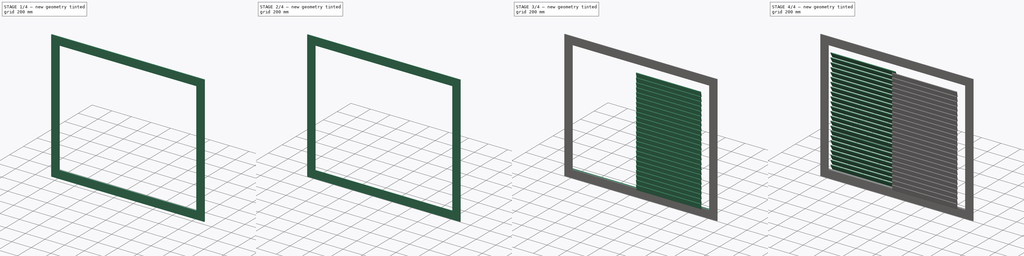
[diagram: build sequence overview — one tinted view per stage of 4, left to right]
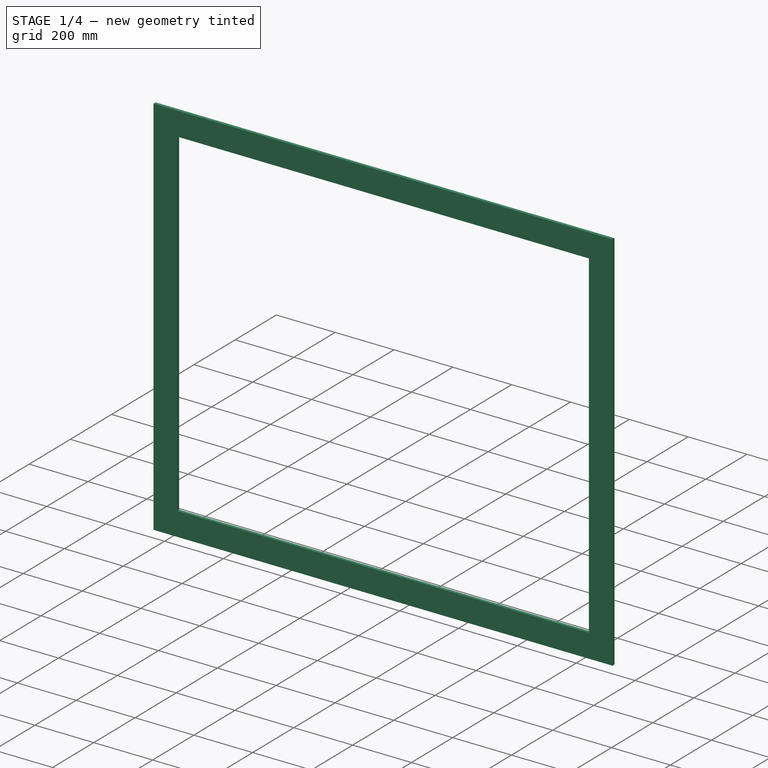
[diagram: stage 1 of 4 — iso view after this stage's code; geometry added in this stage tinted green]
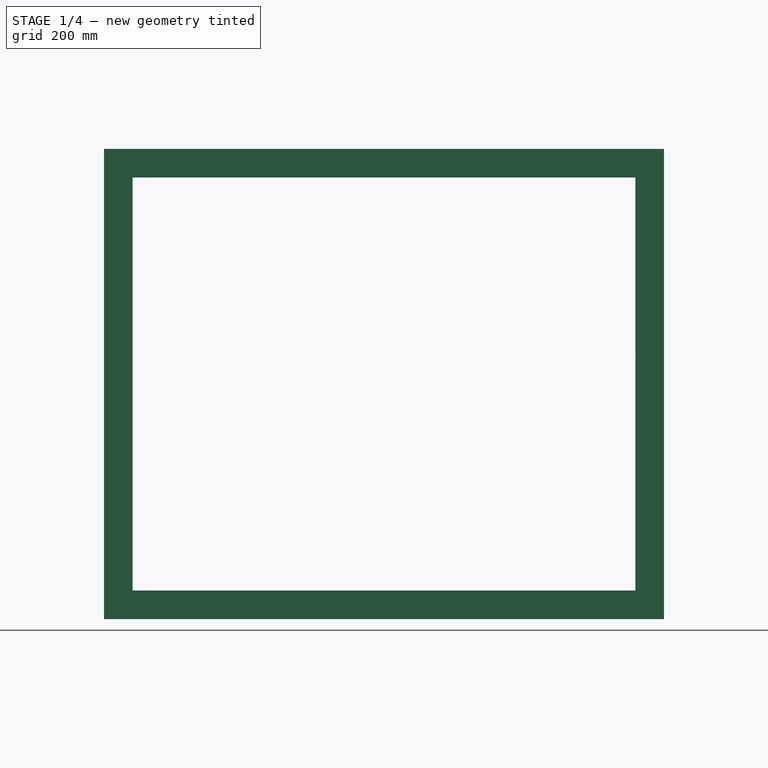
[diagram: stage 1 of 4 — front view after this stage's code; geometry added in this stage tinted green]
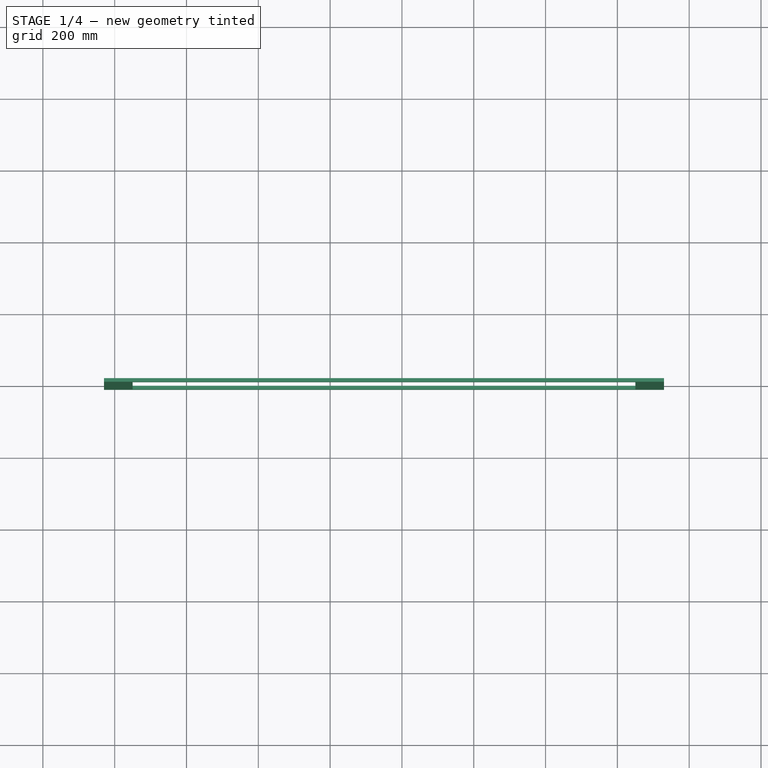
[diagram: stage 1 of 4 — top view after this stage's code; geometry added in this stage tinted green]
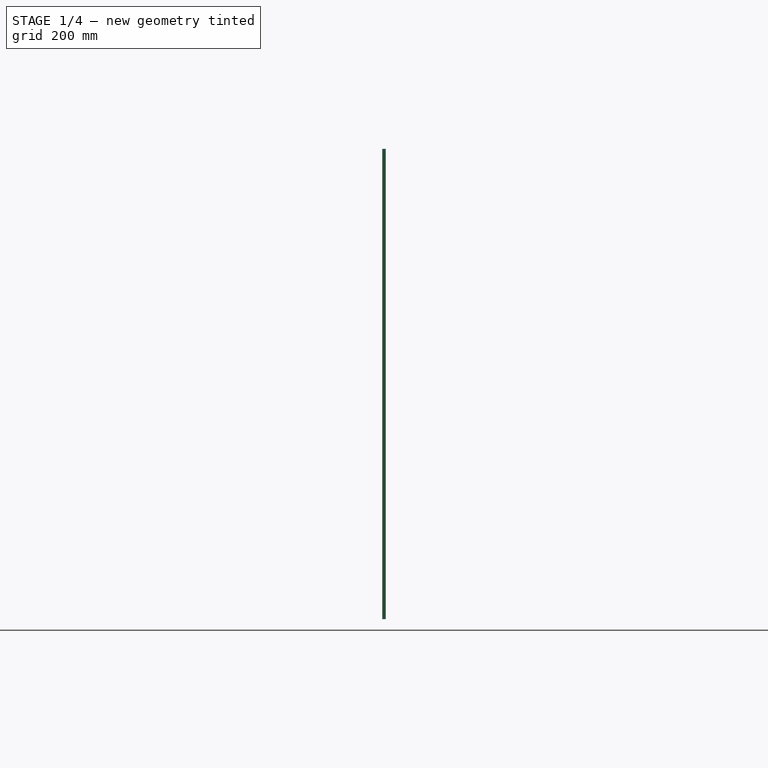
[diagram: stage 1 of 4 — right view after this stage's code; geometry added in this stage tinted green]
FCSTD DOCUMENT  (FreeCAD 0.16R6703 (Git))
Label: Sliding_windows
License: CreativeCommons Attribution
LicenseURL: http://creativecommons.org/licenses/by/4.0/
objects: Sketcher::SketchObject×5, Part::Extrusion×4, Part::FeaturePython×3, PartDesign::Fillet×1, Part::Mirroring×1, App::DocumentObjectGroup×1
note: 14 computed .brp shape members not serialized (recipe doc carries the construction recipe); baked Part::Feature solids carry a one-line shape summary decoded from their .brp

FEATURE [Sketcher::SketchObject] Sketch004
  Placement = pos=(0,0,0) rot=(1,0,0;1.5708rad)
  expr: Constraints.Door_window_width = (Sketch004.Constraints.Width - 2 * Constraints.Door_window_frame) / 2 + Constraints.Frames - Constraints.Vertical_joint_01
  sketch-geometry (43):
    g0: LineSegment StartX=0 StartY=2100 StartZ=0 EndX=1500 EndY=2100 EndZ=0
    g1: LineSegment StartX=1500 StartY=2100 StartZ=0 EndX=1500 EndY=860 EndZ=0
    g2: LineSegment StartX=1500 StartY=860 StartZ=0 EndX=0 EndY=860 EndZ=0
    g3: LineSegment StartX=0 StartY=860 StartZ=0 EndX=0 EndY=2100 EndZ=0
    g4: LineSegment StartX=50 StartY=2050 StartZ=0 EndX=1450 EndY=2050 EndZ=0
    g5: LineSegment StartX=1450 StartY=2050 StartZ=0 EndX=1450 EndY=900 EndZ=0
    g6: LineSegment StartX=1450 StartY=900 StartZ=0 EndX=50 EndY=900 EndZ=0
    g7: LineSegment StartX=50 StartY=900 StartZ=0 EndX=50 EndY=2050 EndZ=0
    g8: LineSegment [constr] StartX=50 StartY=2050 StartZ=0 EndX=0 EndY=2050 EndZ=0
    g9: LineSegment [constr] StartX=50 StartY=2050 StartZ=0 EndX=50 EndY=2100 EndZ=0
    g10: LineSegment [constr] StartX=1450 StartY=2050 StartZ=0 EndX=1500 EndY=2050 EndZ=0
    g11: LineSegment StartX=50 StartY=2049 StartZ=0 EndX=789 EndY=2049 EndZ=0
    g12: LineSegment StartX=789 StartY=2049 StartZ=0 EndX=789 EndY=901 EndZ=0
    g13: LineSegment StartX=789 StartY=901 StartZ=0 EndX=50 EndY=901 EndZ=0
    g14: LineSegment StartX=50 StartY=901 StartZ=0 EndX=50 EndY=2049 EndZ=0
    g15: LineSegment StartX=710 StartY=2049 StartZ=0 EndX=1449 EndY=2049 EndZ=0
    g16: LineSegment StartX=1449 StartY=2049 StartZ=0 EndX=1449 EndY=901 EndZ=0
    g17: LineSegment StartX=1449 StartY=901 StartZ=0 EndX=710 EndY=901 EndZ=0
    g18: LineSegment StartX=710 StartY=901 StartZ=0 EndX=710 EndY=2049 EndZ=0
    g19: LineSegment StartX=90 StartY=2009 StartZ=0 EndX=749 EndY=2009 EndZ=0
    g20: LineSegment StartX=749 StartY=2009 StartZ=0 EndX=749 EndY=941 EndZ=0
    g21: LineSegment StartX=749 StartY=941 StartZ=0 EndX=90 EndY=941 EndZ=0
    g22: LineSegment StartX=90 StartY=941 StartZ=0 EndX=90 EndY=2009 EndZ=0
    g23: LineSegment StartX=750 StartY=2009 StartZ=0 EndX=1409 EndY=2009 EndZ=0
    g24: LineSegment StartX=1409 StartY=2009 StartZ=0 EndX=1409 EndY=941 EndZ=0
    g25: LineSegment StartX=1409 StartY=941 StartZ=0 EndX=750 EndY=941 EndZ=0
    g26: LineSegment StartX=750 StartY=941 StartZ=0 EndX=750 EndY=2009 EndZ=0
    g27: LineSegment [constr] StartX=90 StartY=2009 StartZ=0 EndX=50 EndY=2009 EndZ=0
    g28: LineSegment [constr] StartX=749 StartY=2009 StartZ=0 EndX=749 EndY=2049 EndZ=0
    g29: LineSegment [constr] StartX=749 StartY=2009 StartZ=0 EndX=789 EndY=2009 EndZ=0
    g30: LineSegment [constr] StartX=749 StartY=941 StartZ=0 EndX=749 EndY=901 EndZ=0
    g31: LineSegment [constr] StartX=750 StartY=941 StartZ=0 EndX=710 EndY=941 EndZ=0
    g32: LineSegment [constr] StartX=1409 StartY=2009 StartZ=0 EndX=1449 EndY=2009 EndZ=0
    g33: LineSegment StartX=60 StartY=2049 StartZ=0 EndX=799 EndY=2049 EndZ=0
    g34: LineSegment StartX=799 StartY=2049 StartZ=0 EndX=799 EndY=901 EndZ=0
    g35: LineSegment StartX=799 StartY=901 StartZ=0 EndX=60 EndY=901 EndZ=0
    g36: LineSegment StartX=60 StartY=901 StartZ=0 EndX=60 EndY=2049 EndZ=0
    g37: LineSegment StartX=100 StartY=2009 StartZ=0 EndX=759 EndY=2009 EndZ=0
    g38: LineSegment StartX=759 StartY=2009 StartZ=0 EndX=759 EndY=941 EndZ=0
    g39: LineSegment StartX=759 StartY=941 StartZ=0 EndX=100 EndY=941 EndZ=0
    g40: LineSegment StartX=100 StartY=941 StartZ=0 EndX=100 EndY=2009 EndZ=0
    g41: LineSegment [constr] StartX=100 StartY=1399.42 StartZ=0 EndX=60 EndY=1399.42 EndZ=0
    g42: LineSegment [constr] StartX=759 StartY=1414.11 StartZ=0 EndX=799 EndY=1414.11 EndZ=0
  constraints (138):
    c: Coincident(g0,g1)
    c: Coincident(g1,g2)
    c: Coincident(g2,g3)
    c: Coincident(g3,g0)
    c: Horizontal(g0)
    c: Horizontal(g2)
    c: Vertical(g1)
    c: Vertical(g3)
    c: DistanceX(g0,g0) = 1500  'Width'
    c: Coincident(g4,g5)  'Constraint10'
    c: Coincident(g5,g6)
    c: Coincident(g6,g7)
    c: Coincident(g7,g4)
    c: Horizontal(g4)
    c: Horizontal(g6)
    c: Vertical(g5)
    c: Vertical(g7)
    c: PointOnObject(g8,g7)
    c: PointOnObject(g8,g3)
    c: PointOnObject(g9,g4)
    c: PointOnObject(g9,g0)
    c: PointOnObject(g10,g5)
    c: PointOnObject(g10,g1)
    c: DistanceX(g-1,g2) = 0  'Origin_lenght'
    c: DistanceY(g-1,g2) = 860  'Origin_height'
    c: Angle(g8) = 3.14159  'Constraint27'
    c: Angle(g9) = 1.5708
    c: Angle(g10) = 0
    c: Coincident(g4,g8)
    c: Coincident(g9,g4)
    c: Coincident(g10,g4)
    c: DistanceX(g2,g6) = 50  'Door_window_frame'
    c: Equal(g8,g9)
    c: Equal(g9,g10)
    c: DistanceY(g1,g5) = 40  'Inferior_frame'
    c: Coincident(g11,g12)
    c: Coincident(g12,g13)
    c: Coincident(g13,g14)
    c: Coincident(g14,g11)
    c: Horizontal(g11)
    c: Horizontal(g13)
    c: Vertical(g12)
    c: Vertical(g14)
    c: Coincident(g15,g16)
    c: Coincident(g16,g17)
    c: Coincident(g17,g18)
    c: Coincident(g18,g15)
    c: Horizontal(g15)
    c: Horizontal(g17)
    c: Vertical(g16)
    c: Vertical(g18)
    c: Coincident(g19,g20)
    c: Coincident(g20,g21)
    c: Coincident(g21,g22)
    c: Coincident(g22,g19)
    c: Horizontal(g19)
    c: Horizontal(g21)
    c: Vertical(g20)
    c: Vertical(g22)
    c: Coincident(g23,g24)
    c: Coincident(g24,g25)
    c: Coincident(g25,g26)
    c: Coincident(g26,g23)
    c: Horizontal(g23)
    c: Horizontal(g25)
    c: Vertical(g24)
    c: Vertical(g26)
    c: Equal(g11,g15)
    c: PointOnObject(g27,g22)
    c: PointOnObject(g27,g14)
    c: PointOnObject(g28,g19)
    c: PointOnObject(g28,g11)
    c: PointOnObject(g29,g20)
    c: PointOnObject(g29,g12)
    c: PointOnObject(g30,g13)
    c: Angle(g28) = 1.5708
    c: Angle(g27) = 3.14159
    c: Angle(g29) = 0
    c: PointOnObject(g30,g21)
    c: Angle(g30) = -1.5708
    c: Equal(g28,g27)
    c: Equal(g27,g29)
    c: Equal(g29,g30)
    c: DistanceX(g11,g19) = 40  'Frames'
    c: DistanceY(g11,g15) = 0
    c: DistanceY(g19,g23) = 0
    c: DistanceY(g20,g25) = 0
    c: DistanceY(g17,g12) = 0
    c: PointOnObject(g31,g26)
    c: PointOnObject(g31,g18)
    c: Angle(g31) = -3.14159
    c: PointOnObject(g32,g16)
    c: PointOnObject(g32,g24)
    c: Angle(g32) = 0
    c: Equal(g29,g31)
    c: Equal(g31,g32)
    c: Coincident(g19,g28)
    c: Coincident(g29,g19)
    c: Coincident(g30,g20)
    c: Coincident(g19,g27)
    c: Coincident(g31,g25)
    c: Coincident(g32,g23)
    c: DistanceY(g15,g4) = 1  'Horizontal_joint_01'
    c: DistanceY(g6,g13) = 1  'Horizontal_joint_02'
    c: DistanceX(g15,g4) = 1  'Vertical_joint_01'
    c: DistanceX(g4,g11) = 0  'Door_window_opening'
    c: DistanceX(g11,g11) = 739  'Door_window_width'
    c: Coincident(g33,g34)
    c: Coincident(g34,g35)
    c: Coincident(g35,g36)
    c: Coincident(g36,g33)
    c: Horizontal(g33)
    c: Horizontal(g35)
    c: Vertical(g34)
    c: Vertical(g36)
    c: Coincident(g37,g38)
    c: Coincident(g38,g39)
    c: Coincident(g39,g40)
    c: Coincident(g40,g37)
    c: Horizontal(g37)
    c: Horizontal(g39)
    c: Vertical(g38)
    c: Vertical(g40)
    c: PointOnObject(g41,g40)
    c: PointOnObject(g41,g36)
    c: PointOnObject(g42,g34)
    c: Angle(g41) = 3.14159
    c: Angle(g42) = 0
    c: Equal(g27,g42)
    c: Equal(g42,g41)
    c: PointOnObject(g42,g38)
    c: DistanceY(g33,g15) = 0
    c: DistanceY(g37,g19) = 0
    c: DistanceY(g38,g21) = 0
    c: DistanceY(g34,g13) = 0
    c: Equal(g11,g33)
    c: DistanceX(g4,g33) = 10  'Shutter_opening'
    c: DistanceY(g5,g0) = 1200  'Height'
FEATURE [Part::FeaturePython] Window001  label="Window 001"  # WARN: FeaturePython — macro-defined, semantics opaque (R4)
  Base = -> Sketch004
  Height = 0
  HoleDepth = 0
  MoveWithHost = true
  Normal = (0,1,0)
  Preset = 0
  Role = 0
  Width = 0
  WindowParts = DOOR_WINDOW_FRAME | Frame | Wire0,Wire1 | 150.0 | 0.0 | DOOR_01 | Frame | Wire2,Wire4 | 40.0 | 20.0 | DOOR_02 | Frame | Wire3,Wire5 | 40.0 | 65.0 | DOOR_03 | Frame | Wire6,Wire7 | 40.0 | 110.0 | GLASS | Glass panel | Wire4 | 10.0 | 37.5
FEATURE [Sketcher::SketchObject] Sketch007
  ExternalGeometry = -> [Window001]
  Placement = pos=(0,0,0) rot=(1,0,0;1.5708rad)
  Support = -> Window001 [Face4]
  sketch-geometry (12):
    g0: LineSegment StartX=-30 StartY=2130 StartZ=0 EndX=1530 EndY=2130 EndZ=0
    g1: LineSegment StartX=1530 StartY=2130 StartZ=0 EndX=1530 EndY=820 EndZ=0
    g2: LineSegment StartX=1530 StartY=820 StartZ=0 EndX=-30 EndY=820 EndZ=0
    g3: LineSegment StartX=-30 StartY=820 StartZ=0 EndX=-30 EndY=2130 EndZ=0
    g4: LineSegment StartX=50 StartY=2050 StartZ=0 EndX=1450 EndY=2050 EndZ=0
    g5: LineSegment StartX=1450 StartY=2050 StartZ=0 EndX=1450 EndY=900 EndZ=0
    g6: LineSegment StartX=1450 StartY=900 StartZ=0 EndX=50 EndY=900 EndZ=0
    g7: LineSegment StartX=50 StartY=900 StartZ=0 EndX=50 EndY=2050 EndZ=0
    g8: LineSegment [constr] StartX=-30 StartY=1983.8 StartZ=0 EndX=50 EndY=1983.8 EndZ=0
    g9: LineSegment [constr] StartX=760.68 StartY=2050 StartZ=0 EndX=760.68 EndY=2130 EndZ=0
    g10: LineSegment [constr] StartX=1450 StartY=1482.81 StartZ=0 EndX=1530 EndY=1482.81 EndZ=0
    g11: LineSegment [constr] StartX=2219.25 StartY=900 StartZ=0 EndX=2219.25 EndY=820 EndZ=0
  constraints (36):
    c: Coincident(g0,g1)
    c: Coincident(g1,g2)
    c: Coincident(g2,g3)
    c: Coincident(g3,g0)
    c: Horizontal(g0)
    c: Horizontal(g2)
    c: Vertical(g1)
    c: Vertical(g3)
    c: Coincident(g4,g5)
    c: Coincident(g5,g6)
    c: Coincident(g6,g7)
    c: Coincident(g7,g4)
    c: Horizontal(g4)
    c: Horizontal(g6)
    c: Vertical(g5)
    c: Vertical(g7)
    c: PointOnObject(g8,g3)
    c: PointOnObject(g8,g7)
    c: PointOnObject(g9,g4)
    c: PointOnObject(g10,g5)
    c: PointOnObject(g10,g1)
    c: PointOnObject(g11,g2)
    c: PointOnObject(g9,g0)
    c: Angle(g9) = 1.5708
    c: Angle(g8) = 0
    c: Angle(g10) = 0
    c: PointOnObject(g11,g6)
    c: Angle(g11) = -1.5708
    c: Equal(g11,g10)
    c: Equal(g10,g9)
    c: Equal(g9,g8)
    c: DistanceX(g0,g4) = 80  'Trim'
    c: DistanceX(g4,g-6) = 0
    c: DistanceY(g-6,g4) = 0
    c: DistanceY(g5,g-8) = 0
    c: DistanceX(g-8,g5) = 0
FEATURE [Part::Extrusion] Extrude_Sketch006  label="Trim001"
  Base = -> Sketch007
  Dir = (0,-10,0)
  Solid = true
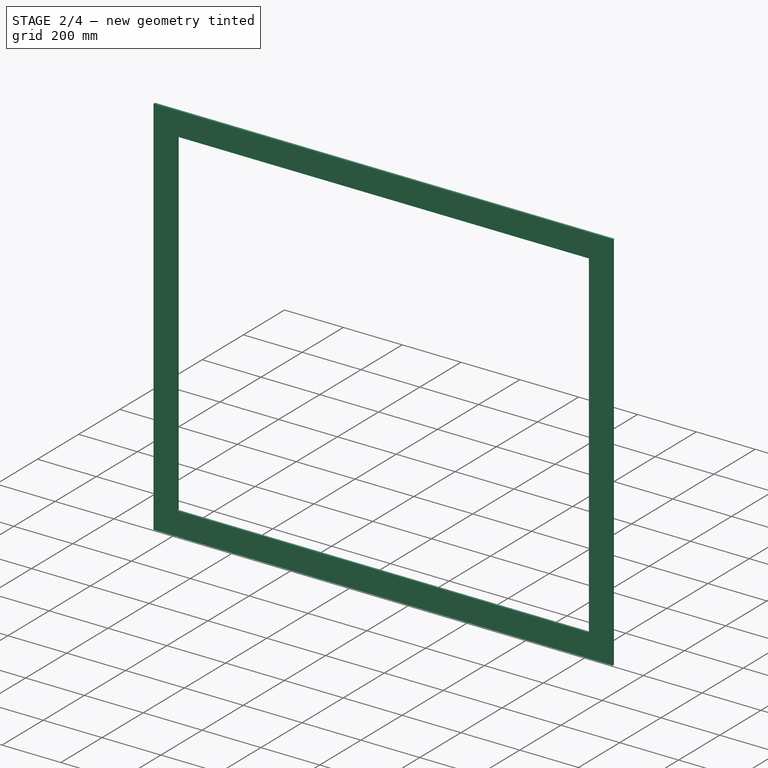
[diagram: stage 2 of 4 — iso view after this stage's code; geometry added in this stage tinted green]
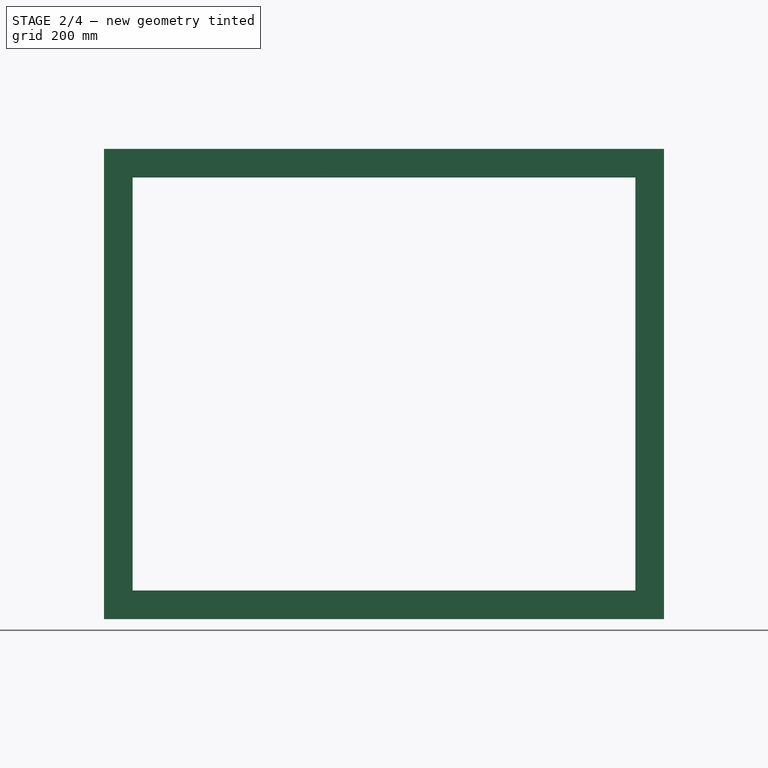
[diagram: stage 2 of 4 — front view after this stage's code; geometry added in this stage tinted green]
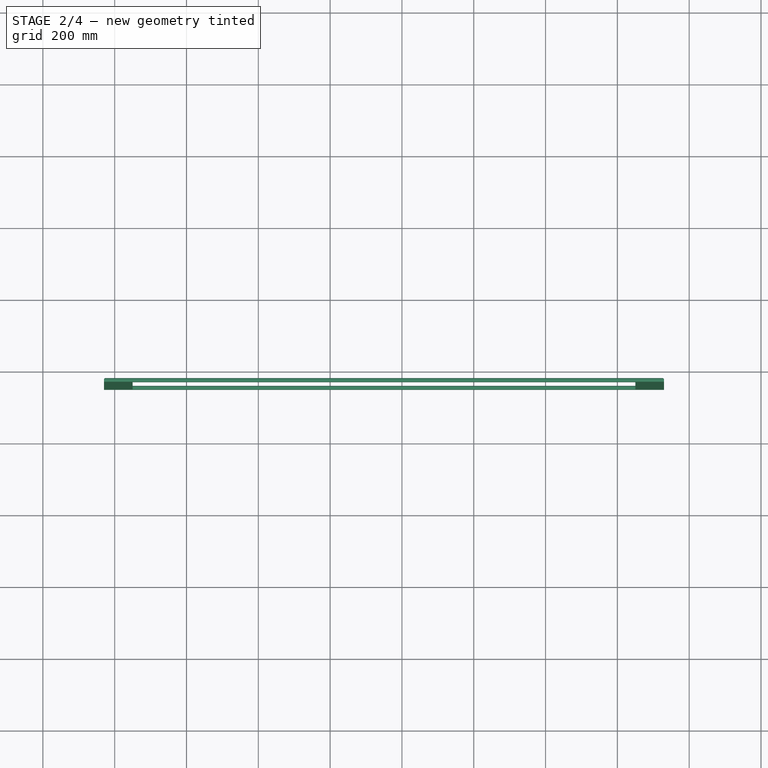
[diagram: stage 2 of 4 — top view after this stage's code; geometry added in this stage tinted green]
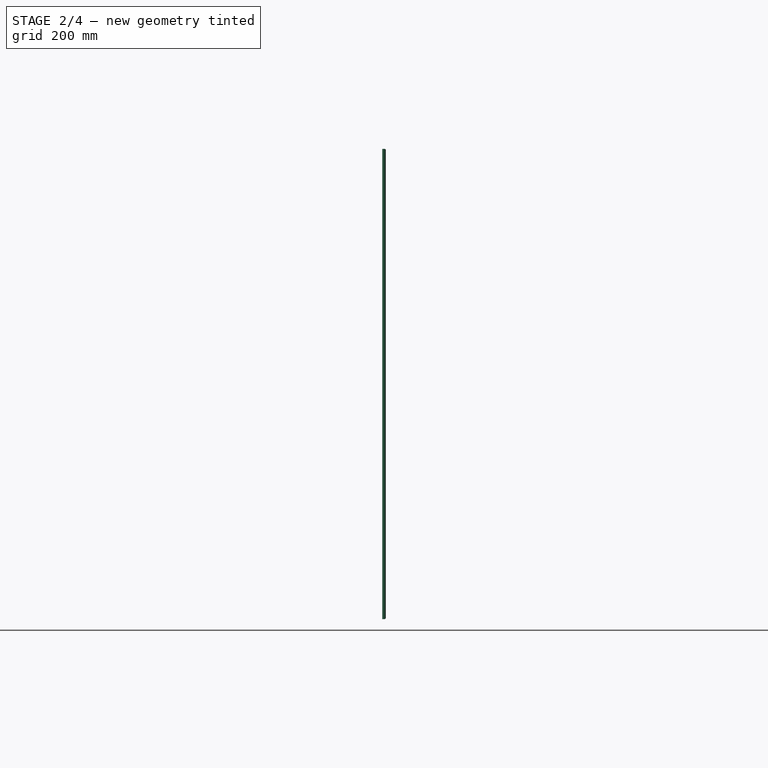
[diagram: stage 2 of 4 — right view after this stage's code; geometry added in this stage tinted green]
FEATURE [PartDesign::Fillet] Fillet001  label="Internal_trim "
  Base = -> Extrude_Sketch006 [Edge4,Edge16,Edge19,Edge7,Edge24,Edge12,Edge22,Edge10]
  Radius = 4
FEATURE [Part::Mirroring] Part__Mirroring001  label="External_trim  (Mirror #2)"
  Base = (0,0,0)
  Normal = (0,1,0)
  Placement = pos=(0,150,0) rot=(0,0,1;0rad)
  Source = -> Fillet001
FEATURE [App::DocumentObjectGroup] Group001  label="Window "
  Group = -> [Window001,Array002,Array003,Extrude_Sketch006,Sketch008,Extrude_Sketch008,Fillet001,Part__Mirroring001]
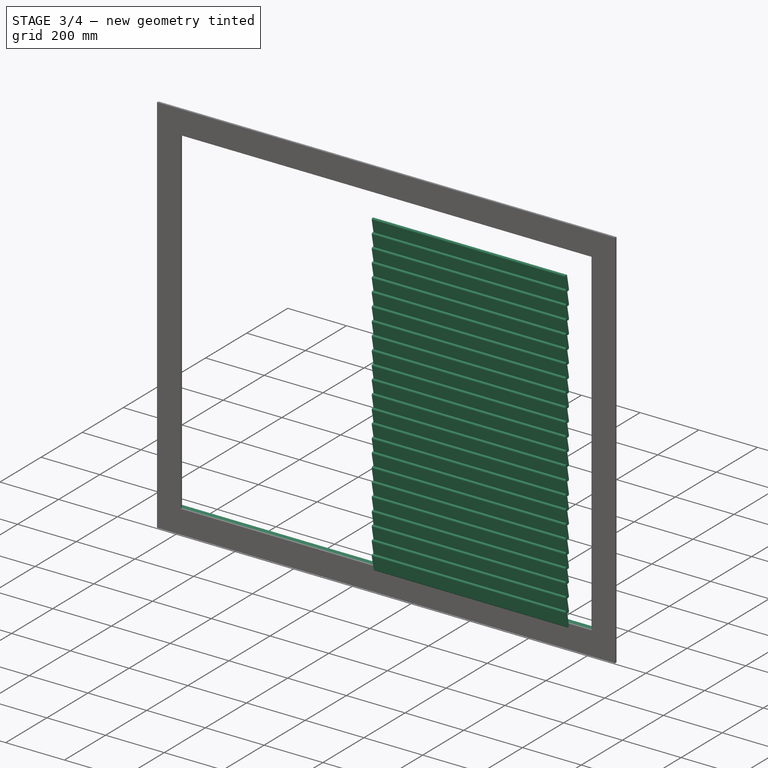
[diagram: stage 3 of 4 — iso view after this stage's code; geometry added in this stage tinted green]
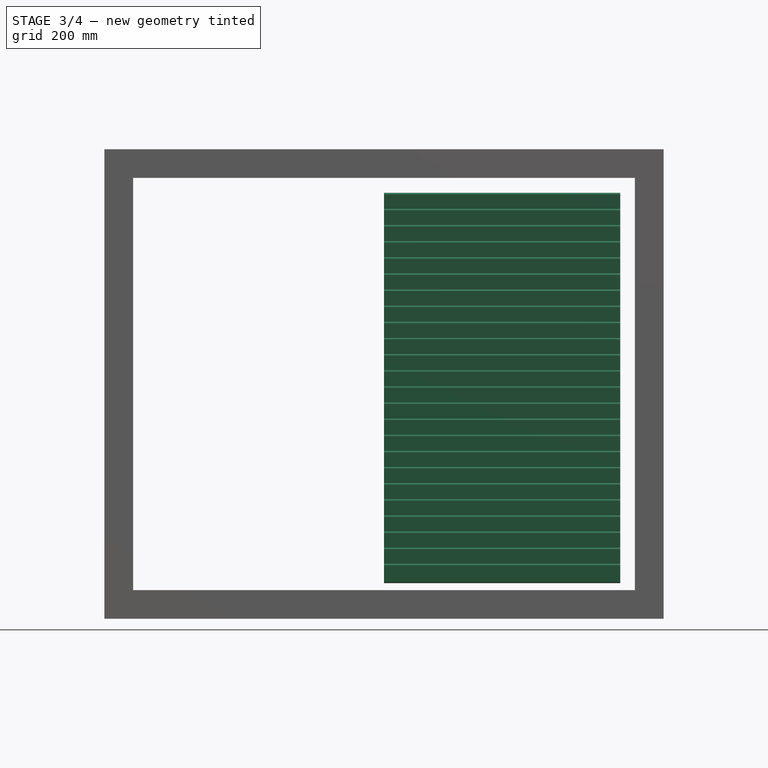
[diagram: stage 3 of 4 — front view after this stage's code; geometry added in this stage tinted green]
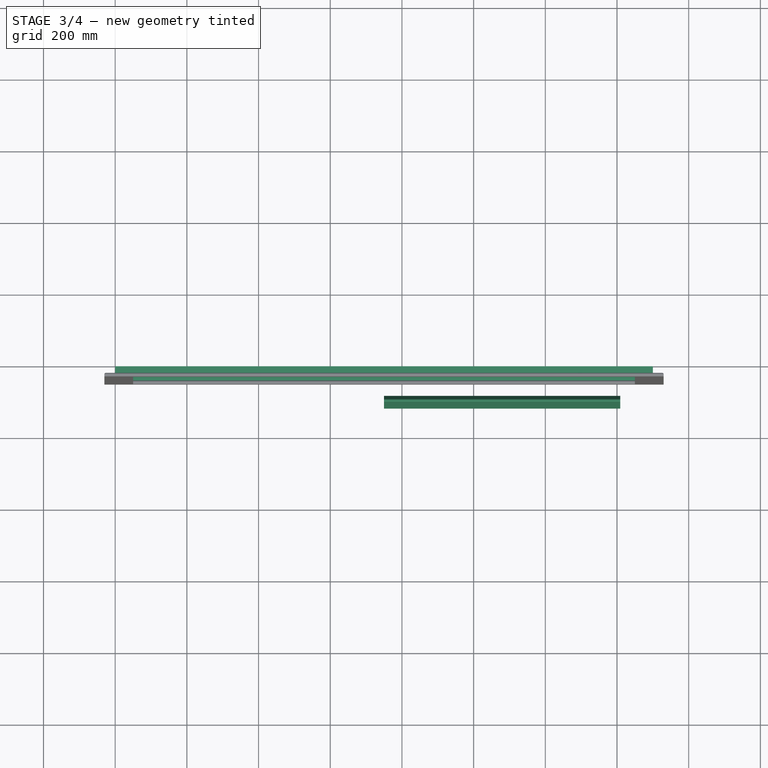
[diagram: stage 3 of 4 — top view after this stage's code; geometry added in this stage tinted green]
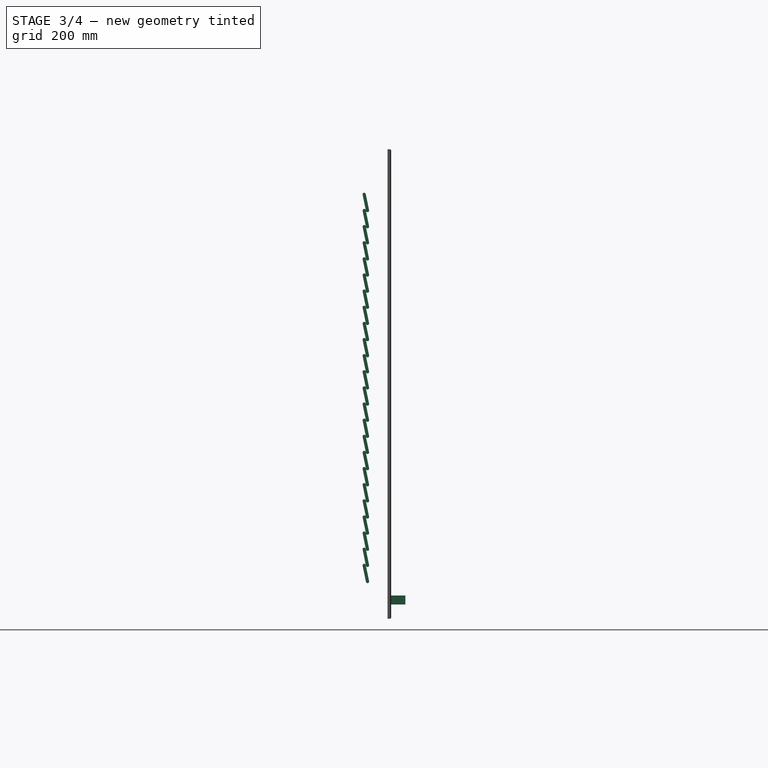
[diagram: stage 3 of 4 — right view after this stage's code; geometry added in this stage tinted green]
FEATURE [Sketcher::SketchObject] Sketch006
  ExternalGeometry = -> [Window001]
  Placement = pos=(750,0,0) rot=(0.57735,0.57735,0.57735;2.0944rad)
  Support = -> Window001 [Face27]
  sketch-geometry (6):
    g0: LineSegment StartX=89.4081 StartY=2004.9 StartZ=0 EndX=98.6452 EndY=1959.9 EndZ=0
    g1: LineSegment [constr] StartX=98.6452 StartY=1959.9 StartZ=0 EndX=89.829 EndY=1958.1 EndZ=0
    g2: LineSegment StartX=89.829 StartY=1958.1 StartZ=0 EndX=80.5919 EndY=2003.1 EndZ=0
    g3: LineSegment [constr] StartX=80.5919 StartY=2003.1 StartZ=0 EndX=89.4081 EndY=2004.9 EndZ=0
    g4: ArcOfCircle CenterX=85 CenterY=2004 CenterZ=0 NormalX=0 NormalY=0 NormalZ=1 Radius=4.5 StartAngle=0.202457 EndAngle=3.34405
    g5: ArcOfCircle CenterX=94.2371 CenterY=1959 CenterZ=0 NormalX=0 NormalY=0 NormalZ=1 Radius=4.50002 StartAngle=3.34405 EndAngle=6.48564
  constraints (18):
    c: Coincident(g0,g1)
    c: Coincident(g1,g2)
    c: Coincident(g2,g3)
    c: Coincident(g3,g0)
    c: Parallel(g0,g2)
    c: Parallel(g3,g1)
    c: Angle(g3,g0) = 1.5708
    c: Coincident(g4,g0)
    c: Coincident(g4,g2)
    c: Coincident(g5,g0)
    c: Coincident(g5,g1)
    c: PointOnObject(g5,g1)
    c: PointOnObject(g4,g3)
    c: Radius(g4) = 4.5
    c: Angle(g0) = -1.36834
    c: DistanceX(g-4,g4) = 20
    c: DistanceY(g4,g-4) = 5
    c: DistanceY(g5,g4) = 45
FEATURE [Part::Extrusion] Extrude_Sketch005  label="Shutter_unit_004"
  Base = -> Sketch006
  Dir = (659,0,0)
  Solid = true
  expr: Dir.x = Sketch004.Constraints.Door_window_width - 2 * Sketch004.Constraints.Frames
FEATURE [Part::FeaturePython] Array003  label="Closed_shutter001"  # Draft array (typed FeaturePython)
  Angle = 360
  ArrayType = 0
  Axis = (0,0,1)
  Base = -> Extrude_Sketch005
  Center = (0,0,0)
  Fuse = false
  IntervalAxis = (0,0,0)
  IntervalX = (0,0,0)
  IntervalY = (0,0,0)
  IntervalZ = (0,0,-45)
  NumberPolar = 1
  NumberX = 1
  NumberY = 1
  NumberZ = 24
  expr: NumberZ = (Sketch004.Constraints.Height - 2 * Sketch004.Constraints.Door_window_frame - Sketch004.Constraints.Horizontal_joint_01 - Sketch004.Constraints.Horizontal_joint_02 - Sketch004.Constraints.Frames) / 45
FEATURE [Sketcher::SketchObject] Sketch008
  ExternalGeometry = -> [Window001]
  Placement = pos=(0,150,0) rot=(0,0.707107,0.707107;3.14159rad)
  Support = -> Window001 [Face5]
  sketch-geometry (4):
    g0: LineSegment StartX=-1500 StartY=885 StartZ=0 EndX=0 EndY=885 EndZ=0
    g1: LineSegment StartX=0 StartY=885 StartZ=0 EndX=0 EndY=860 EndZ=0
    g2: LineSegment StartX=0 StartY=860 StartZ=0 EndX=-1500 EndY=860 EndZ=0
    g3: LineSegment StartX=-1500 StartY=860 StartZ=0 EndX=-1500 EndY=885 EndZ=0
  constraints (12):
    c: Coincident(g0,g1)
    c: Coincident(g1,g2)
    c: Coincident(g2,g3)
    c: Coincident(g3,g0)
    c: Horizontal(g0)
    c: Horizontal(g2)
    c: Vertical(g1)
    c: Vertical(g3)
    c: DistanceY(g3,g3) = 25  'Sill'
    c: DistanceX(g2,g-8) = 0
    c: DistanceY(g2,g-8) = 0
    c: DistanceX(g-6,g1) = 0
FEATURE [Part::Extrusion] Extrude_Sketch008  label="Sill"
  Base = -> Sketch008
  Dir = (0,50,0)
  Solid = true
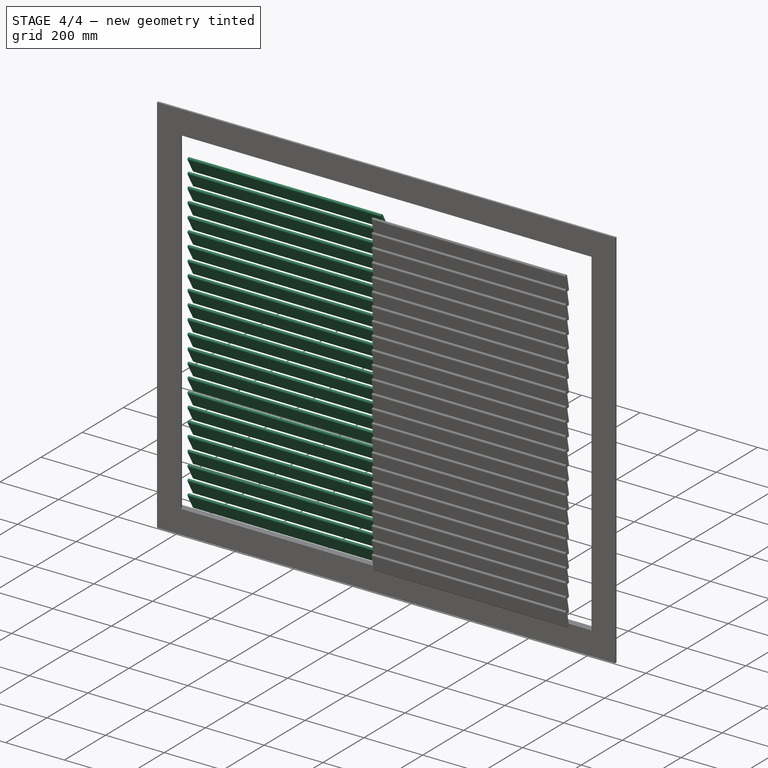
[diagram: stage 4 of 4 — iso view after this stage's code; geometry added in this stage tinted green]
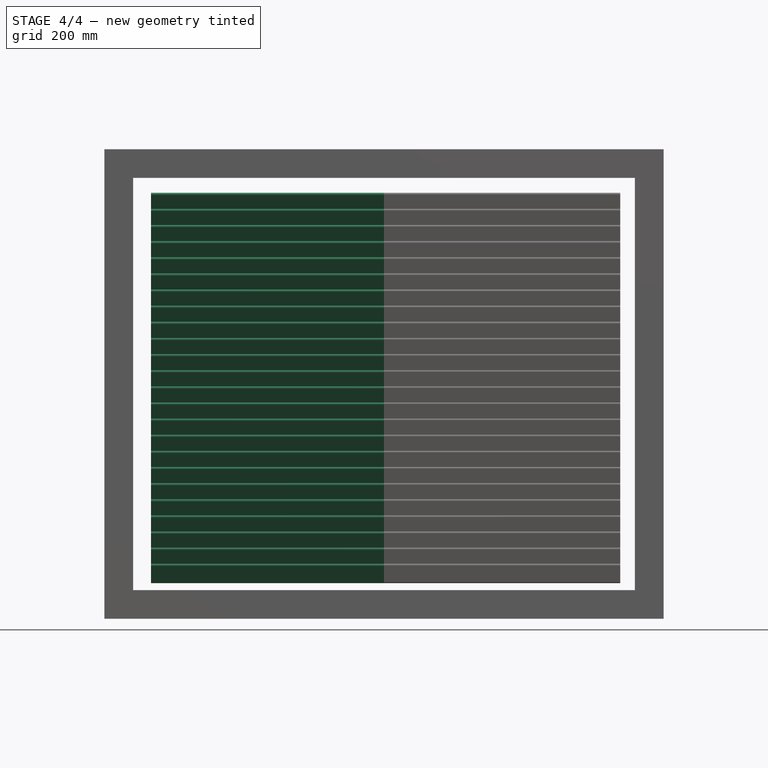
[diagram: stage 4 of 4 — front view after this stage's code; geometry added in this stage tinted green]
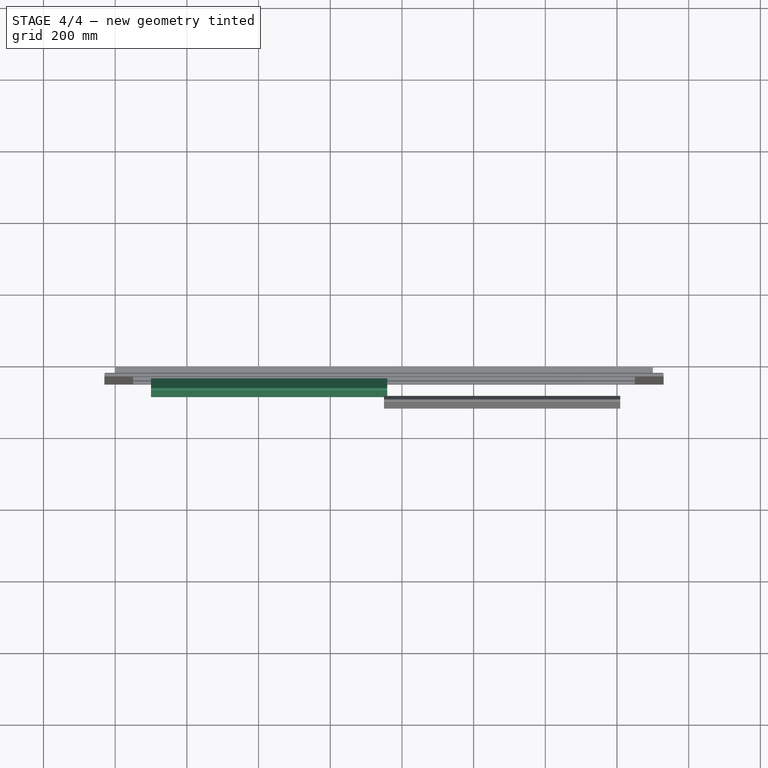
[diagram: stage 4 of 4 — top view after this stage's code; geometry added in this stage tinted green]
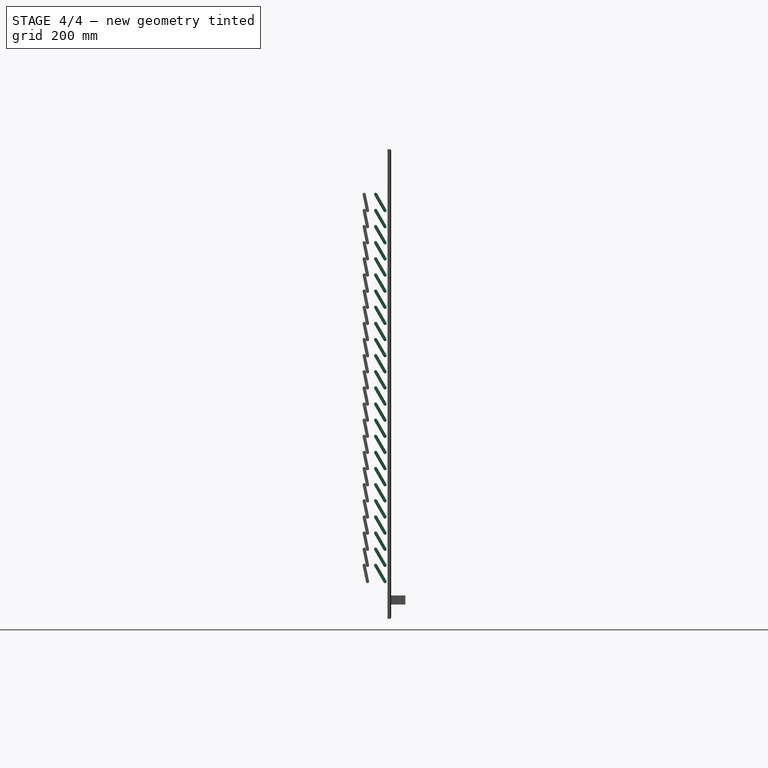
[diagram: stage 4 of 4 — right view after this stage's code; geometry added in this stage tinted green]
FEATURE [Sketcher::SketchObject] Sketch005
  ExternalGeometry = -> [Window001]
  Placement = pos=(100,0,0) rot=(0.57735,0.57735,0.57735;2.0944rad)
  Support = -> Window001 [Face37]
  sketch-geometry (6):
    g0: LineSegment StartX=120.897 StartY=2006.25 StartZ=0 EndX=146.877 EndY=1961.25 EndZ=0
    g1: LineSegment [constr] StartX=146.877 StartY=1961.25 StartZ=0 EndX=139.083 EndY=1956.75 EndZ=0
    g2: LineSegment StartX=139.083 StartY=1956.75 StartZ=0 EndX=113.103 EndY=2001.75 EndZ=0
    g3: LineSegment [constr] StartX=113.103 StartY=2001.75 StartZ=0 EndX=120.897 EndY=2006.25 EndZ=0
    g4: ArcOfCircle CenterX=117 CenterY=2004 CenterZ=0 NormalX=0 NormalY=0 NormalZ=1 Radius=4.5 StartAngle=0.523593 EndAngle=3.66519
    g5: ArcOfCircle CenterX=142.98 CenterY=1959 CenterZ=0 NormalX=0 NormalY=0 NormalZ=1 Radius=4.50009 StartAngle=3.66519 EndAngle=6.80678
  constraints (18):
    c: Coincident(g0,g1)
    c: Coincident(g1,g2)
    c: Coincident(g2,g3)
    c: Coincident(g3,g0)
    c: Parallel(g0,g2)
    c: Parallel(g3,g1)
    c: Angle(g3,g0) = 1.5708
    c: Coincident(g4,g0)
    c: Coincident(g4,g2)
    c: Coincident(g5,g0)
    c: Coincident(g5,g1)
    c: PointOnObject(g5,g1)
    c: PointOnObject(g4,g3)
    c: Radius(g4) = 4.5
    c: DistanceY(g5,g4) = 45
    c: Angle(g0) = -1.0472
    c: DistanceY(g4,g-5) = 5
    c: DistanceX(g-5,g4) = 7
FEATURE [Part::Extrusion] Extrude_Sketch004  label="Shutter_unit_003"
  Base = -> Sketch005
  Dir = (659,0,0)
  Solid = true
  expr: Dir.x = Sketch004.Constraints.Door_window_width - 2 * Sketch004.Constraints.Frames
FEATURE [Part::FeaturePython] Array002  label="Open_shutter001"  # Draft array (typed FeaturePython)
  Angle = 360
  ArrayType = 0
  Axis = (0,0,1)
  Base = -> Extrude_Sketch004
  Center = (0,0,0)
  Fuse = false
  IntervalAxis = (0,0,0)
  IntervalX = (0,0,0)
  IntervalY = (0,0,0)
  IntervalZ = (0,0,-45)
  NumberPolar = 1
  NumberX = 1
  NumberY = 1
  NumberZ = 24
  expr: NumberZ = (Sketch004.Constraints.Height - 2 * Sketch004.Constraints.Door_window_frame - Sketch004.Constraints.Horizontal_joint_01 - Sketch004.Constraints.Horizontal_joint_02 - Sketch004.Constraints.Frames) / 45
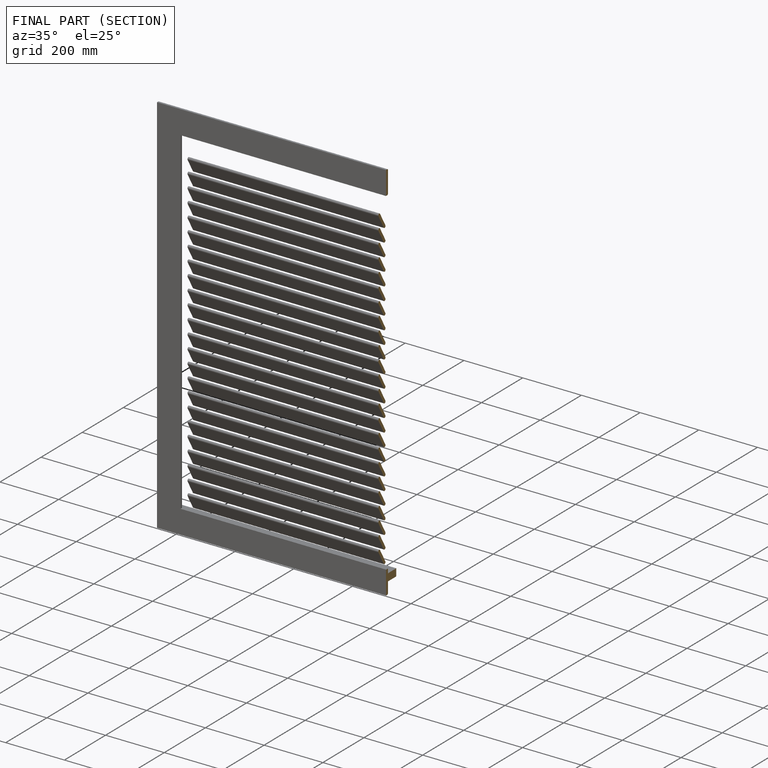
[diagram: finished part — half-section view (interior)]
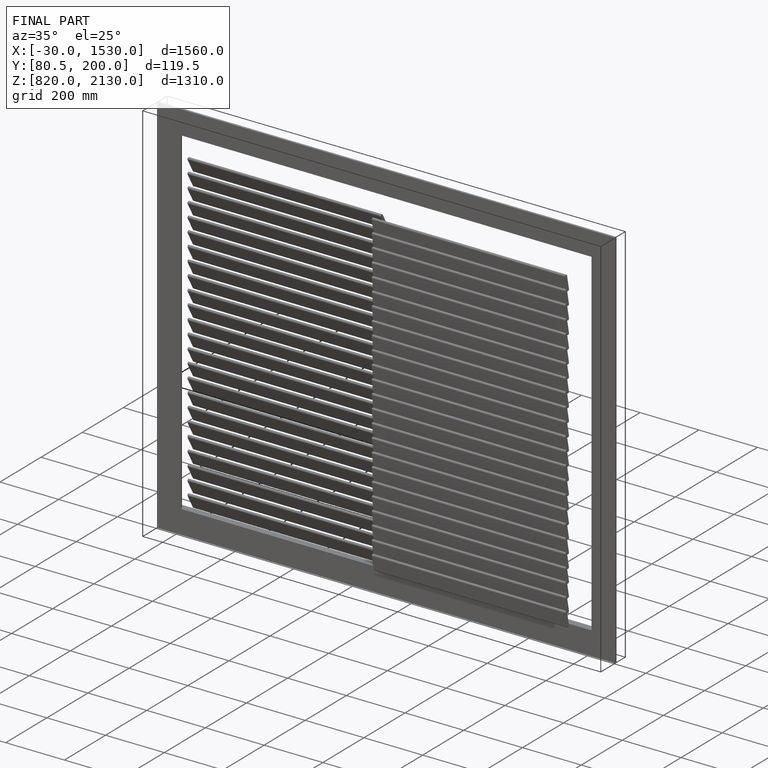
[diagram: finished part — iso view with bounding-box wireframe]
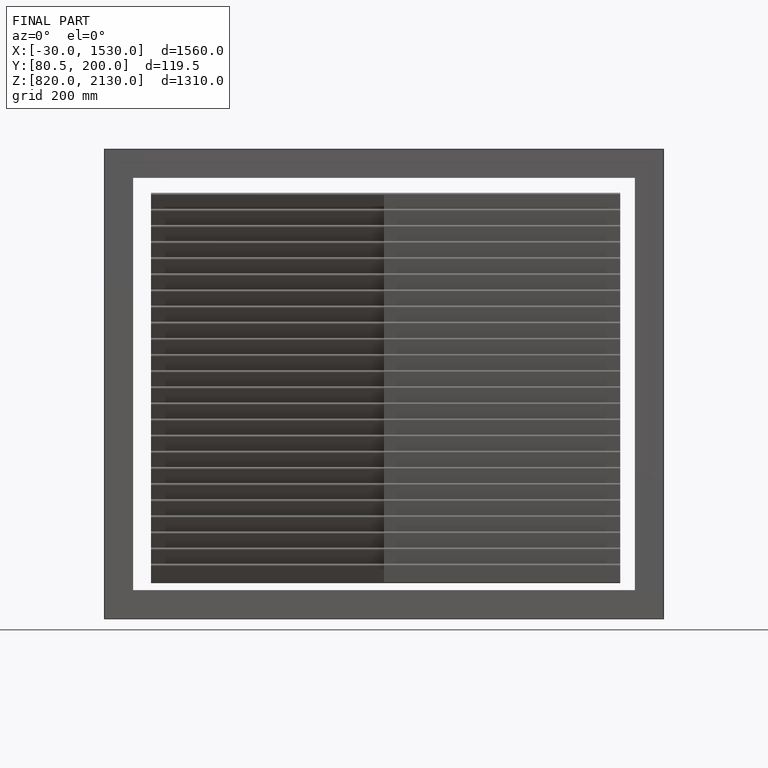
[diagram: finished part — front view with bounding-box wireframe]
